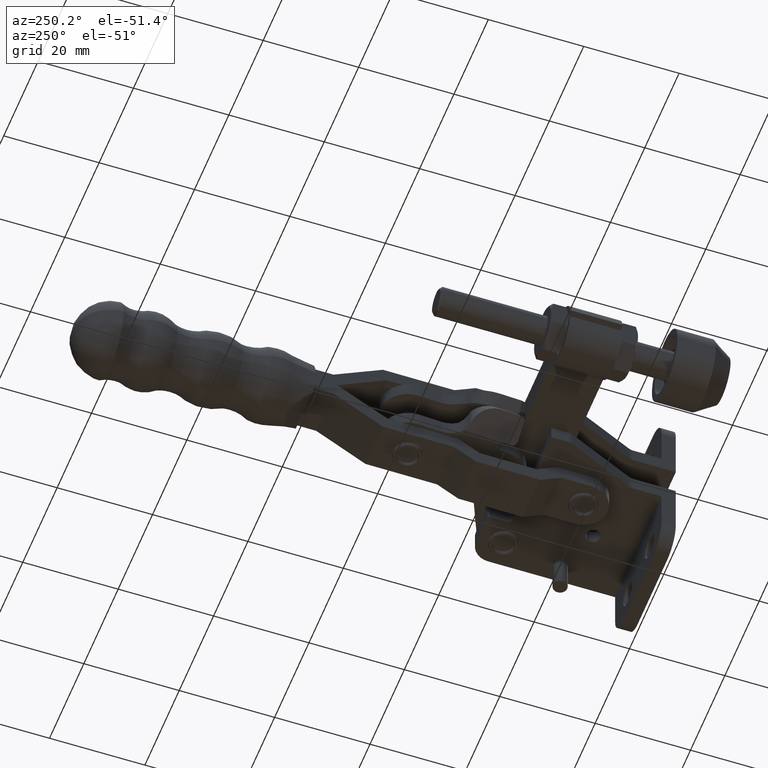
[diagram: clean part render]
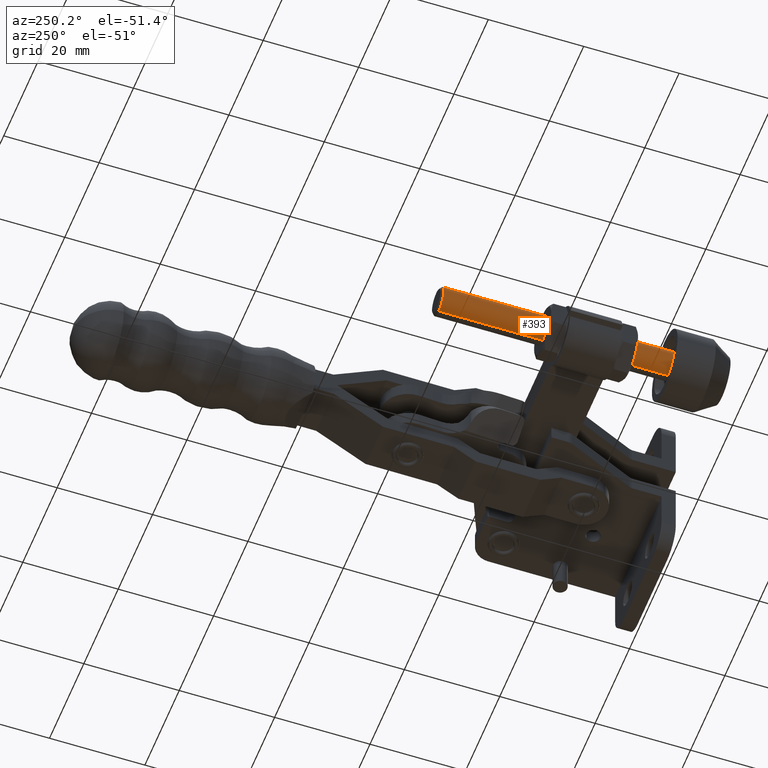
[diagram: same view with one face highlighted and labeled with its STEP entity id]
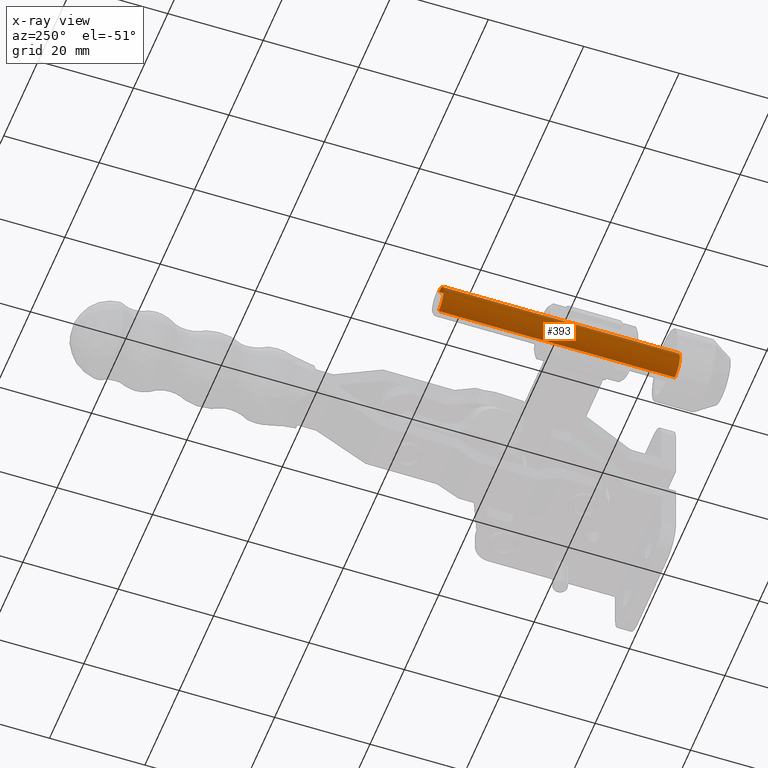
[diagram: x-ray of the same camera — body ghosted, the highlighted face saturated]
A machine part, auxiliary view. The second image highlights one B-rep face of the part: STEP entity #393.
The next image is the same camera in x-ray: the body ghosted, the highlighted face saturated — about 0% of this face is hidden behind the body in this view.
In plain terms, the highlighted cylindrical surface (edge-blend (fillet) strip) has radius 3 mm, axis along (-0, -1, -0).
Its self-contained STEP definition (entity closure, byte-faithful):
#393 = ADVANCED_FACE ( 'NONE', ( #3623 ), #9790, .T. ) ;
#486 = DIRECTION ( 'NONE',  ( 0.0000000000000000000, 1.000000000000000000, 0.0000000000000000000 ) ) ;
#881 = ORIENTED_EDGE ( 'NONE', *, *, #2428, .F. ) ;
#941 = VECTOR ( 'NONE', #5852, 1000.000000000000000 ) ;
#1180 = VERTEX_POINT ( 'NONE', #7921 ) ;
#1254 = ORIENTED_EDGE ( 'NONE', *, *, #7374, .T. ) ;
#1586 = CIRCLE ( 'NONE', #8900, 3.000000000000000400 ) ;
#2205 = DIRECTION ( 'NONE',  ( -0.0000000000000000000, -1.000000000000000000, -0.0000000000000000000 ) ) ;
#2311 = VERTEX_POINT ( 'NONE', #3008 ) ;
#2428 = EDGE_CURVE ( 'NONE', #5317, #1180, #3316, .T. ) ;
#3008 = CARTESIAN_POINT ( 'NONE',  ( -53.88955070568556500, 59.40000000000009800, -6.000000000000151900 ) ) ;
#3309 = AXIS2_PLACEMENT_3D ( 'NONE', #7632, #4386, #8025 ) ;
#3316 = LINE ( 'NONE', #7611, #941 ) ;
#3623 = FACE_OUTER_BOUND ( 'NONE', #7664, .T. ) ;
#4039 = CARTESIAN_POINT ( 'NONE',  ( -53.88955070568556500, 59.40000000000009800, -1.504872615409880200E-013 ) ) ;
#4155 = LINE ( 'NONE', #4595, #6288 ) ;
#4296 = ORIENTED_EDGE ( 'NONE', *, *, #9849, .T. ) ;
#4386 = DIRECTION ( 'NONE',  ( -0.0000000000000000000, -1.000000000000000000, -0.0000000000000000000 ) ) ;
#4539 = CARTESIAN_POINT ( 'NONE',  ( -53.88955070568556500, 59.40000000000009800, -3.000000000000151000 ) ) ;
#4595 = CARTESIAN_POINT ( 'NONE',  ( -53.88955070568556500, 59.90000000000009800, -6.000000000000151000 ) ) ;
#5275 = CARTESIAN_POINT ( 'NONE',  ( -53.88955070568556500, 9.900000000000101600, -3.000000000000151000 ) ) ;
#5317 = VERTEX_POINT ( 'NONE', #4039 ) ;
#5341 = CARTESIAN_POINT ( 'NONE',  ( -53.88955070568556500, 9.900000000000101600, -6.000000000000151900 ) ) ;
#5344 = CIRCLE ( 'NONE', #6674, 3.000000000000000400 ) ;
#5348 = DIRECTION ( 'NONE',  ( 0.0000000000000000000, 0.0000000000000000000, 1.000000000000000000 ) ) ;
#5852 = DIRECTION ( 'NONE',  ( -0.0000000000000000000, -1.000000000000000000, -0.0000000000000000000 ) ) ;
#6072 = DIRECTION ( 'NONE',  ( 0.0000000000000000000, 0.0000000000000000000, 1.000000000000000000 ) ) ;
#6288 = VECTOR ( 'NONE', #2205, 1000.000000000000000 ) ;
#6674 = AXIS2_PLACEMENT_3D ( 'NONE', #5275, #486, #6072 ) ;
#7316 = EDGE_CURVE ( 'NONE', #9248, #1180, #5344, .T. ) ;
#7374 = EDGE_CURVE ( 'NONE', #5317, #2311, #1586, .T. ) ;
#7611 = CARTESIAN_POINT ( 'NONE',  ( -53.88955070568556500, 59.90000000000009800, -1.504872615409880200E-013 ) ) ;
#7632 = CARTESIAN_POINT ( 'NONE',  ( -53.88955070568556500, 59.90000000000009800, -3.000000000000151000 ) ) ;
#7664 = EDGE_LOOP ( 'NONE', ( #881, #1254, #4296, #8587 ) ) ;
#7921 = CARTESIAN_POINT ( 'NONE',  ( -53.88955070568556500, 9.900000000000101600, -1.504872615409880200E-013 ) ) ;
#8025 = DIRECTION ( 'NONE',  ( 0.0000000000000000000, 0.0000000000000000000, -1.000000000000000000 ) ) ;
#8587 = ORIENTED_EDGE ( 'NONE', *, *, #7316, .T. ) ;
#8900 = AXIS2_PLACEMENT_3D ( 'NONE', #4539, #10189, #5348 ) ;
#9248 = VERTEX_POINT ( 'NONE', #5341 ) ;
#9790 = CYLINDRICAL_SURFACE ( 'NONE', #3309, 3.000000000000000000 ) ;
#9849 = EDGE_CURVE ( 'NONE', #2311, #9248, #4155, .T. ) ;
#10189 = DIRECTION ( 'NONE',  ( 0.0000000000000000000, -1.000000000000000000, 0.0000000000000000000 ) ) ;